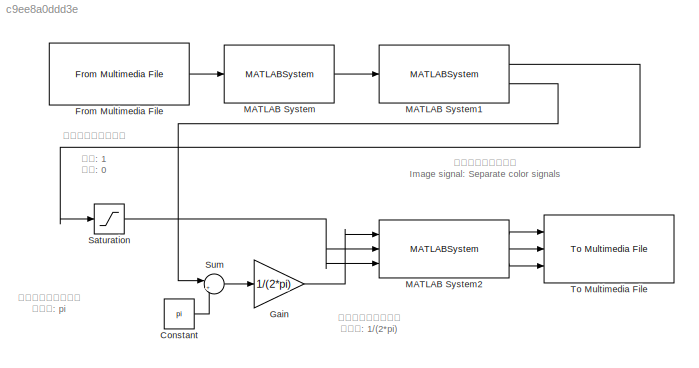
MODEL slx_c9ee8a0ddd3e
KIND model
BLOCK [Constant] Constant
  Value = pi
BLOCK [Reference] From Multimedia File  REF=dspvision/From Multimedia File
  Ports = [0, 1]
  SourceBlock = dspvision/From Multimedia File
  SourceType = From Multimedia File
  audioDataType = int16
  audioFrameSize = 1024
  colorVideoFormat = One multidimensional signal
  computeAudioFrameSize = off
  dataOrg = Column-major
  fourcc = RGB
  inheritSampleTime = on
  inputFilename = vipmen.avi
  isIntensityVideo = off
  loop = on
  noAudioOutput = off
  numPlays = inf
  outSamplingMode = Sample based
  outputEOF = off
  outputStreams = Video only
  userDefinedSampleTime = 1/30
  videoDataType = single
BLOCK [Gain] Gain
  Gain = 1/(2*pi)
  OutDataTypeStr = Inherit: Inherit via internal rule
  ParamDataTypeStr = Inherit: Inherit via internal rule
  SaturateOnIntegerOverflow = off
BLOCK [MATLABSystem] MATLAB System
  MaskDisplay = disp('RGB to Gray');\nport_label('input',1,'RGB');\nport_label('output',1,'Gray');
  MaskType = Rgb2GraySystem
  Ports = [1, 1]
  System = Rgb2GraySystem
BLOCK [MATLABSystem] MATLAB System1
  Kernel = [ 1, 1, 1; 0, 0, 0; -1, -1, -1 ]
  MaskDisplay = disp('Grad. Filt.');\nport_label('input',1,'Gray');\nport_label('output',1,'Mag.');\nport_label('output',2,'Ang.');
  MaskType = GradFiltSystem
  Ports = [1, 2]
  System = GradFiltSystem
BLOCK [MATLABSystem] MATLAB System2
  MaskDisplay = disp('HSV to RGB');\nport_label('input',1,'H');\nport_label('input',2,'S');\nport_label('input',3,'V');\nport_label('output',1,'R');\nport_label('output',2,'G');\nport_label('output',3,'B');
  MaskType = Hsv2RgbSystem
  Ports = [3, 3]
  System = Hsv2RgbSystem
BLOCK [Saturate] Saturation
  InputPortMap = u0
  LowerLimit = 0
  Ports = [1, 1]
  UpperLimit = 1
BLOCK [Sum] Sum
  IconShape = round
  InputSameDT = off
  Inputs = |++
  OutDataTypeStr = Inherit: Inherit via internal rule
  Ports = [2, 1]
  SaturateOnIntegerOverflow = off
BLOCK [Reference] To Multimedia File  REF=dspvision/To Multimedia File
  Ports = [3]
  SourceBlock = dspvision/To Multimedia File
  SourceType = To Multimedia File
  audioCompressor = None (uncompressed)
  audioDatatype = Determine from input data type
  fileType = AVI
  fourcc = RGB
  imagePorts = Separate color signals
  mj2000CompFactor = 10
  outputFilename = vipmengradfilt.avi
  streamSelection = Video only
  videoCompressor = None (uncompressed)
  videoQuality = 75
ANNOTATION (root): ブロックパラメータ Image signal: Separate color signals
ANNOTATION (root): ブロックパラメータ ゲイン: 1/(2*pi)
ANNOTATION (root): ブロックパラメータ 上限: 1 下限: 0
ANNOTATION (root): ブロックパラメータ 定数値: pi
LINE Constant:1 -> Sum:2
LINE From Multimedia File:1 -> MATLAB System:1
LINE Gain:1 -> MATLAB System2:1
LINE MATLAB System1:1 -> Saturation:1
LINE MATLAB System1:2 -> Sum:1
LINE MATLAB System2:1 -> To Multimedia File:1
LINE MATLAB System2:2 -> To Multimedia File:2
LINE MATLAB System2:3 -> To Multimedia File:3
LINE MATLAB System:1 -> MATLAB System1:1
NET Saturation:1 -> MATLAB System2:2, MATLAB System2:3
LINE Sum:1 -> Gain:1
note: NET lines group one-source signal fan-out (src -> all destinations, sorted); 1:1 wires keep LINE
